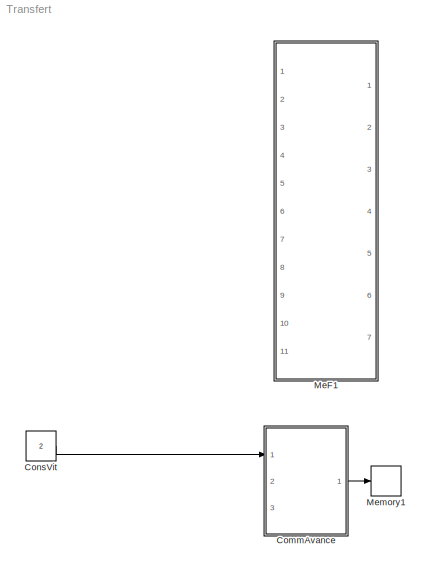
MODEL Transfert
KIND model
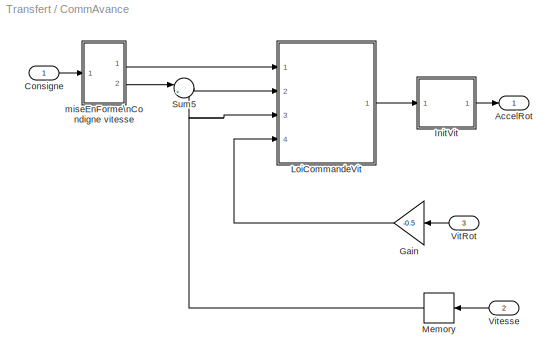
BLOCK [SubSystem] CommAvance
  Ports = [3, 1]
  RequestExecContextInheritance = off
  SID = 1
  Variant = off
BLOCK [Outport] CommAvance/AccelRot
  IconDisplay = Port number
  SID = 42
BLOCK [Inport] CommAvance/Consigne
  IconDisplay = Port number
  SID = 2
BLOCK [Gain] CommAvance/Gain
  Gain = -0.5
  SID = 5
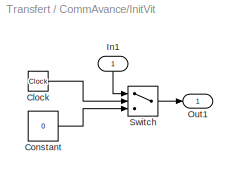
BLOCK [SubSystem] CommAvance/InitVit
  Ports = [1, 1]
  RequestExecContextInheritance = off
  SID = 6
  Variant = off
BLOCK [Clock] CommAvance/InitVit/Clock
  SID = 8
BLOCK [Constant] CommAvance/InitVit/Constant
  SID = 9
  Value = 0
BLOCK [Inport] CommAvance/InitVit/In1
  IconDisplay = Port number
  SID = 7
BLOCK [Outport] CommAvance/InitVit/Out1
  IconDisplay = Port number
  SID = 11
BLOCK [Switch] CommAvance/InitVit/Switch
  InputSameDT = off
  SID = 10
  Threshold = 1
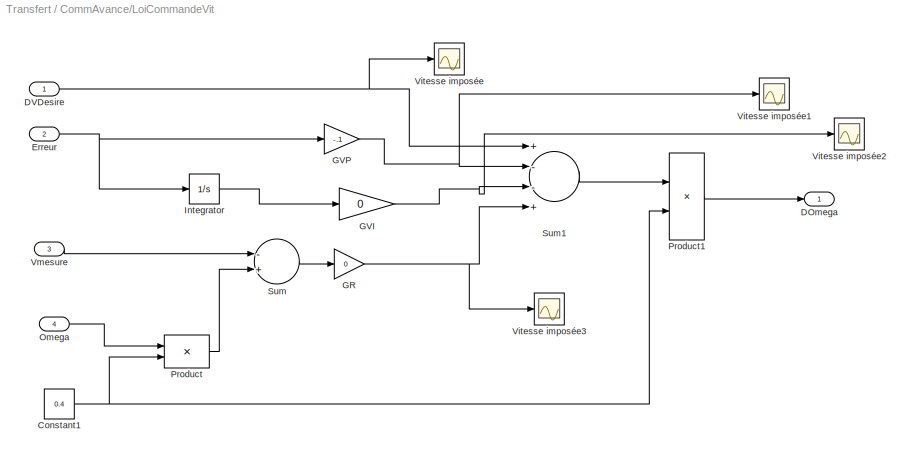
BLOCK [SubSystem] CommAvance/LoiCommandeVit
  Ports = [4, 1]
  RequestExecContextInheritance = off
  SID = 12
  Variant = off
BLOCK [Constant] CommAvance/LoiCommandeVit/Constant1
  SID = 17
  Value = 0.4
BLOCK [Outport] CommAvance/LoiCommandeVit/DOmega
  IconDisplay = Port number
  SID = 30
BLOCK [Inport] CommAvance/LoiCommandeVit/DVDesire
  IconDisplay = Port number
  SID = 13
BLOCK [Inport] CommAvance/LoiCommandeVit/Erreur
  IconDisplay = Port number
  Port = 2
  SID = 14
BLOCK [Gain] CommAvance/LoiCommandeVit/GR
  Gain = 0
  SID = 18
BLOCK [Gain] CommAvance/LoiCommandeVit/GVI
  Gain = 0
  SID = 19
BLOCK [Gain] CommAvance/LoiCommandeVit/GVP
  Gain = -.1
  SID = 20
BLOCK [Integrator] CommAvance/LoiCommandeVit/Integrator
  Ports = [1, 1]
  SID = 21
BLOCK [Inport] CommAvance/LoiCommandeVit/Omega
  IconDisplay = Port number
  Port = 4
  SID = 16
BLOCK [Product] CommAvance/LoiCommandeVit/Product
  InputSameDT = off
  Ports = [2, 1]
  RndMeth = Floor
  SID = 22
BLOCK [Product] CommAvance/LoiCommandeVit/Product1
  InputSameDT = off
  Inputs = */
  Ports = [2, 1]
  RndMeth = Floor
  SID = 23
BLOCK [Sum] CommAvance/LoiCommandeVit/Sum
  InputSameDT = off
  Inputs = -+
  OutDataTypeStr = Inherit: Inherit via internal rule
  Ports = [2, 1]
  SID = 24
BLOCK [Sum] CommAvance/LoiCommandeVit/Sum1
  InputSameDT = off
  Inputs = +--+
  OutDataTypeStr = Inherit: Inherit via internal rule
  Ports = [4, 1]
  SID = 25
BLOCK [Scope] CommAvance/LoiCommandeVit/Vitesse imposée
  NumInputPorts = 1
  Ports = [1]
  SID = 26
  ScopeSpecificationString = C++SS(StrPVP('Location','[597, 321, 921, 560]'),StrPVP('Open','off'),MxPVP('AxesTitles',24,'struct(''axes1'',''%<SignalLabel>'')'),StrPVP('TimeRange','12'),StrPVP('YMin','0'),StrPVP('YMax','2'),StrPVP('SaveToWorkspace','on'),StrPVP('SaveName','derivevite'),StrPVP('DataFormat','StructureWithTime'),StrPVP('LimitDataPoints','off'),StrPVP('BlockParamSampleTime','0'),StrPVP('Decimation','1'),StrPVP('Bl...<+28ch>
BLOCK [Scope] CommAvance/LoiCommandeVit/Vitesse imposée1
  NumInputPorts = 1
  Ports = [1]
  SID = 27
  ScopeSpecificationString = C++SS(StrPVP('Location','[6, 62, 1286, 775]'),StrPVP('Open','off'),MxPVP('AxesTitles',24,'struct(''axes1'',''%<SignalLabel>'')'),StrPVP('TimeRange','12              '),StrPVP('YMin','0.0002'),StrPVP('YMax','0.000725'),StrPVP('SaveName','ScopeData15'),StrPVP('DataFormat','StructureWithTime'),StrPVP('BlockParamSampleTime','0'),StrPVP('LimitDataPoints','on'),StrPVP('Decimation','1'),StrPVP('BlockPara...<+21ch>
BLOCK [Scope] CommAvance/LoiCommandeVit/Vitesse imposée2
  NumInputPorts = 1
  Ports = [1]
  SID = 28
  ScopeSpecificationString = C++SS(StrPVP('Location','[6, 62, 1286, 775]'),StrPVP('Open','off'),MxPVP('AxesTitles',24,'struct(''axes1'',''%<SignalLabel>'')'),StrPVP('TimeRange','12              '),StrPVP('YMin','-1'),StrPVP('YMax','1'),StrPVP('SaveName','ScopeData16'),StrPVP('DataFormat','StructureWithTime'),StrPVP('BlockParamSampleTime','0'),StrPVP('LimitDataPoints','on'),StrPVP('Decimation','1'),StrPVP('BlockParamSampleInpu...<+10ch>
BLOCK [Scope] CommAvance/LoiCommandeVit/Vitesse imposée3
  NumInputPorts = 1
  Ports = [1]
  SID = 29
  ScopeSpecificationString = C++SS(StrPVP('Location','[522, 378, 846, 617]'),StrPVP('Open','off'),MxPVP('AxesTitles',24,'struct(''axes1'',''%<SignalLabel>'')'),StrPVP('TimeRange','12              '),StrPVP('YMin','0.0425'),StrPVP('YMax','0.0625'),StrPVP('SaveName','ScopeData17'),StrPVP('DataFormat','StructureWithTime'),StrPVP('BlockParamSampleTime','0'),StrPVP('LimitDataPoints','on'),StrPVP('Decimation','1'),StrPVP('BlockPara...<+21ch>
BLOCK [Inport] CommAvance/LoiCommandeVit/Vmesure
  IconDisplay = Port number
  Port = 3
  SID = 15
BLOCK [Memory] CommAvance/Memory
  InheritSampleTime = on
  SID = 31
BLOCK [Sum] CommAvance/Sum5
  IconShape = round
  InputSameDT = off
  Inputs = |+-
  OutDataTypeStr = Inherit: Inherit via internal rule
  Ports = [2, 1]
  SID = 32
BLOCK [Inport] CommAvance/VitRot
  IconDisplay = Port number
  Port = 3
  SID = 4
BLOCK [Inport] CommAvance/Vitesse
  IconDisplay = Port number
  Port = 2
  SID = 3
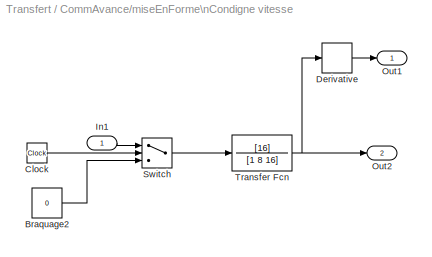
BLOCK [SubSystem] CommAvance/miseEnForme\nCondigne vitesse
  Ports = [1, 2]
  RequestExecContextInheritance = off
  SID = 33
  Variant = off
BLOCK [Constant] CommAvance/miseEnForme\nCondigne vitesse/Braquage2
  SID = 35
  Value = 0
BLOCK [Clock] CommAvance/miseEnForme\nCondigne vitesse/Clock
  SID = 36
BLOCK [Derivative] CommAvance/miseEnForme\nCondigne vitesse/Derivative
  SID = 37
BLOCK [Inport] CommAvance/miseEnForme\nCondigne vitesse/In1
  IconDisplay = Port number
  SID = 34
BLOCK [Outport] CommAvance/miseEnForme\nCondigne vitesse/Out1
  IconDisplay = Port number
  SID = 40
BLOCK [Outport] CommAvance/miseEnForme\nCondigne vitesse/Out2
  IconDisplay = Port number
  Port = 2
  SID = 41
BLOCK [Switch] CommAvance/miseEnForme\nCondigne vitesse/Switch
  InputSameDT = off
  SID = 38
  SaturateOnIntegerOverflow = off
  Threshold = 1.5
BLOCK [TransferFcn] CommAvance/miseEnForme\nCondigne vitesse/Transfer Fcn
  Denominator = [1 8 16]
  Numerator = [16]
  SID = 39
BLOCK [Constant] ConsVit
  SID = 43
  Value = 2
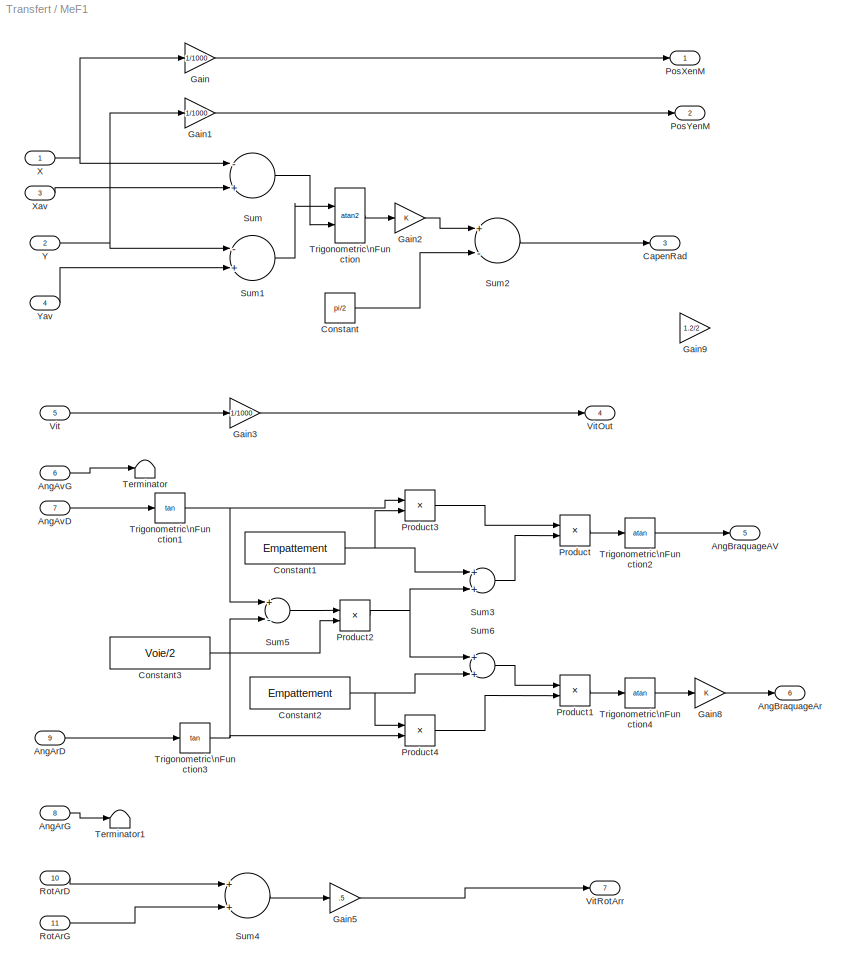
BLOCK [SubSystem] MeF1
  Ports = [11, 7]
  RequestExecContextInheritance = off
  SID = 44
  Variant = off
BLOCK [Inport] MeF1/AngArD
  IconDisplay = Port number
  Port = 9
  SID = 53
BLOCK [Inport] MeF1/AngArG
  IconDisplay = Port number
  Port = 8
  SID = 52
BLOCK [Inport] MeF1/AngAvD
  IconDisplay = Port number
  Port = 7
  SID = 51
BLOCK [Inport] MeF1/AngAvG
  IconDisplay = Port number
  Port = 6
  SID = 50
BLOCK [Outport] MeF1/AngBraquageAV
  IconDisplay = Port number
  Port = 5
  SID = 90
BLOCK [Outport] MeF1/AngBraquageAr
  IconDisplay = Port number
  Port = 6
  SID = 91
BLOCK [Outport] MeF1/CapenRad
  IconDisplay = Port number
  Port = 3
  SID = 88
BLOCK [Constant] MeF1/Constant
  SID = 56
  Value = pi/2
BLOCK [Constant] MeF1/Constant1
  SID = 57
  Value = Empattement
BLOCK [Constant] MeF1/Constant2
  SID = 58
  Value = Empattement
BLOCK [Constant] MeF1/Constant3
  SID = 59
  Value = Voie/2
BLOCK [Gain] MeF1/Gain
  Gain = 1/1000
  OutDataTypeStr = Inherit: Inherit via internal rule
  ParamDataTypeStr = Inherit: Inherit via internal rule
  SID = 60
  SaturateOnIntegerOverflow = off
BLOCK [Gain] MeF1/Gain1
  Gain = 1/1000
  OutDataTypeStr = Inherit: Inherit via internal rule
  ParamDataTypeStr = Inherit: Inherit via internal rule
  SID = 61
  SaturateOnIntegerOverflow = off
BLOCK [Gain] MeF1/Gain2
  OutDataTypeStr = Inherit: Inherit via internal rule
  ParamDataTypeStr = Inherit: Inherit via internal rule
  SID = 62
  SaturateOnIntegerOverflow = off
BLOCK [Gain] MeF1/Gain3
  Gain = 1/1000
  OutDataTypeStr = Inherit: Inherit via internal rule
  ParamDataTypeStr = Inherit: Inherit via internal rule
  SID = 63
  SaturateOnIntegerOverflow = off
BLOCK [Gain] MeF1/Gain5
  Gain = .5
  OutDataTypeStr = Inherit: Inherit via internal rule
  ParamDataTypeStr = Inherit: Inherit via internal rule
  SID = 64
  SaturateOnIntegerOverflow = off
BLOCK [Gain] MeF1/Gain8
  OutDataTypeStr = Inherit: Inherit via internal rule
  ParamDataTypeStr = Inherit: Inherit via internal rule
  SID = 65
  SaturateOnIntegerOverflow = off
BLOCK [Gain] MeF1/Gain9
  Gain = 1.2/2
  OutDataTypeStr = Inherit: Inherit via internal rule
  ParamDataTypeStr = Inherit: Inherit via internal rule
  SID = 66
  SaturateOnIntegerOverflow = off
BLOCK [Outport] MeF1/PosXenM
  IconDisplay = Port number
  SID = 86
BLOCK [Outport] MeF1/PosYenM
  IconDisplay = Port number
  Port = 2
  SID = 87
BLOCK [Product] MeF1/Product
  InputSameDT = off
  Inputs = */
  OutDataTypeStr = Inherit: Inherit via internal rule
  Ports = [2, 1]
  SID = 67
  SaturateOnIntegerOverflow = off
BLOCK [Product] MeF1/Product1
  InputSameDT = off
  Inputs = /*
  OutDataTypeStr = Inherit: Inherit via internal rule
  Ports = [2, 1]
  SID = 68
  SaturateOnIntegerOverflow = off
BLOCK [Product] MeF1/Product2
  InputSameDT = off
  Inputs = **
  OutDataTypeStr = Inherit: Inherit via internal rule
  Ports = [2, 1]
  SID = 69
  SaturateOnIntegerOverflow = off
BLOCK [Product] MeF1/Product3
  InputSameDT = off
  Inputs = **
  OutDataTypeStr = Inherit: Inherit via internal rule
  Ports = [2, 1]
  SID = 70
  SaturateOnIntegerOverflow = off
BLOCK [Product] MeF1/Product4
  InputSameDT = off
  Inputs = **
  OutDataTypeStr = Inherit: Inherit via internal rule
  Ports = [2, 1]
  SID = 71
  SaturateOnIntegerOverflow = off
BLOCK [Inport] MeF1/RotArD
  IconDisplay = Port number
  Port = 10
  SID = 54
BLOCK [Inport] MeF1/RotArG
  IconDisplay = Port number
  Port = 11
  SID = 55
BLOCK [Sum] MeF1/Sum
  InputSameDT = off
  Inputs = -+
  OutDataTypeStr = Inherit: Inherit via internal rule
  Ports = [2, 1]
  SID = 72
  SaturateOnIntegerOverflow = off
BLOCK [Sum] MeF1/Sum1
  InputSameDT = off
  Inputs = -+
  OutDataTypeStr = Inherit: Inherit via internal rule
  Ports = [2, 1]
  SID = 73
  SaturateOnIntegerOverflow = off
BLOCK [Sum] MeF1/Sum2
  InputSameDT = off
  Inputs = +-
  OutDataTypeStr = Inherit: Inherit via internal rule
  Ports = [2, 1]
  SID = 74
  SaturateOnIntegerOverflow = off
BLOCK [Sum] MeF1/Sum3
  InputSameDT = off
  OutDataTypeStr = Inherit: Inherit via internal rule
  Ports = [2, 1]
  SID = 75
  SaturateOnIntegerOverflow = off
BLOCK [Sum] MeF1/Sum4
  InputSameDT = off
  OutDataTypeStr = Inherit: Inherit via internal rule
  Ports = [2, 1]
  SID = 76
  SaturateOnIntegerOverflow = off
BLOCK [Sum] MeF1/Sum5
  InputSameDT = off
  Inputs = +-
  OutDataTypeStr = Inherit: Inherit via internal rule
  Ports = [2, 1]
  SID = 77
  SaturateOnIntegerOverflow = off
BLOCK [Sum] MeF1/Sum6
  InputSameDT = off
  OutDataTypeStr = Inherit: Inherit via internal rule
  Ports = [2, 1]
  SID = 78
  SaturateOnIntegerOverflow = off
BLOCK [Terminator] MeF1/Terminator
  SID = 79
BLOCK [Terminator] MeF1/Terminator1
  SID = 80
BLOCK [Trigonometry] MeF1/Trigonometric\nFunction
  Operator = atan2
  Ports = [2, 1]
  SID = 81
BLOCK [Trigonometry] MeF1/Trigonometric\nFunction1
  Operator = tan
  Ports = [1, 1]
  SID = 82
BLOCK [Trigonometry] MeF1/Trigonometric\nFunction2
  Operator = atan
  Ports = [1, 1]
  SID = 83
BLOCK [Trigonometry] MeF1/Trigonometric\nFunction3
  Operator = tan
  Ports = [1, 1]
  SID = 84
BLOCK [Trigonometry] MeF1/Trigonometric\nFunction4
  Operator = atan
  Ports = [1, 1]
  SID = 85
BLOCK [Inport] MeF1/Vit
  IconDisplay = Port number
  Port = 5
  SID = 49
BLOCK [Outport] MeF1/VitOut
  IconDisplay = Port number
  Port = 4
  SID = 89
BLOCK [Outport] MeF1/VitRotArr
  IconDisplay = Port number
  Port = 7
  SID = 92
BLOCK [Inport] MeF1/X
  IconDisplay = Port number
  SID = 45
BLOCK [Inport] MeF1/Xav
  IconDisplay = Port number
  Port = 3
  SID = 47
BLOCK [Inport] MeF1/Y
  IconDisplay = Port number
  Port = 2
  SID = 46
BLOCK [Inport] MeF1/Yav
  IconDisplay = Port number
  Port = 4
  SID = 48
BLOCK [Memory] Memory1
  InheritSampleTime = on
  SID = 93
LINE CommAvance/Consigne:1 -> CommAvance/miseEnForme\nCondigne vitesse:1
LINE CommAvance/Gain:1 -> CommAvance/LoiCommandeVit:4
LINE CommAvance/InitVit/Clock:1 -> CommAvance/InitVit/Switch:2
LINE CommAvance/InitVit/Constant:1 -> CommAvance/InitVit/Switch:3
LINE CommAvance/InitVit/In1:1 -> CommAvance/InitVit/Switch:1
LINE CommAvance/InitVit/Switch:1 -> CommAvance/InitVit/Out1:1
LINE CommAvance/InitVit:1 -> CommAvance/AccelRot:1
NET CommAvance/LoiCommandeVit/Constant1:1 -> CommAvance/LoiCommandeVit/Product1:2, CommAvance/LoiCommandeVit/Product:2
NET CommAvance/LoiCommandeVit/DVDesire:1 -> CommAvance/LoiCommandeVit/Sum1:1, CommAvance/LoiCommandeVit/Vitesse imposée:1
NET CommAvance/LoiCommandeVit/Erreur:1 -> CommAvance/LoiCommandeVit/GVP:1, CommAvance/LoiCommandeVit/Integrator:1
NET CommAvance/LoiCommandeVit/GR:1 -> CommAvance/LoiCommandeVit/Sum1:4, CommAvance/LoiCommandeVit/Vitesse imposée3:1
NET CommAvance/LoiCommandeVit/GVI:1 -> CommAvance/LoiCommandeVit/Sum1:3, CommAvance/LoiCommandeVit/Vitesse imposée2:1
NET CommAvance/LoiCommandeVit/GVP:1 -> CommAvance/LoiCommandeVit/Sum1:2, CommAvance/LoiCommandeVit/Vitesse imposée1:1
LINE CommAvance/LoiCommandeVit/Integrator:1 -> CommAvance/LoiCommandeVit/GVI:1
LINE CommAvance/LoiCommandeVit/Omega:1 -> CommAvance/LoiCommandeVit/Product:1
LINE CommAvance/LoiCommandeVit/Product1:1 -> CommAvance/LoiCommandeVit/DOmega:1
LINE CommAvance/LoiCommandeVit/Product:1 -> CommAvance/LoiCommandeVit/Sum:2
LINE CommAvance/LoiCommandeVit/Sum1:1 -> CommAvance/LoiCommandeVit/Product1:1
LINE CommAvance/LoiCommandeVit/Sum:1 -> CommAvance/LoiCommandeVit/GR:1
LINE CommAvance/LoiCommandeVit/Vmesure:1 -> CommAvance/LoiCommandeVit/Sum:1
LINE CommAvance/LoiCommandeVit:1 -> CommAvance/InitVit:1
NET CommAvance/Memory:1 -> CommAvance/LoiCommandeVit:3, CommAvance/Sum5:2
LINE CommAvance/Sum5:1 -> CommAvance/LoiCommandeVit:2
LINE CommAvance/VitRot:1 -> CommAvance/Gain:1
LINE CommAvance/Vitesse:1 -> CommAvance/Memory:1
LINE CommAvance/miseEnForme\nCondigne vitesse/Braquage2:1 -> CommAvance/miseEnForme\nCondigne vitesse/Switch:3
LINE CommAvance/miseEnForme\nCondigne vitesse/Clock:1 -> CommAvance/miseEnForme\nCondigne vitesse/Switch:2
LINE CommAvance/miseEnForme\nCondigne vitesse/Derivative:1 -> CommAvance/miseEnForme\nCondigne vitesse/Out1:1
LINE CommAvance/miseEnForme\nCondigne vitesse/In1:1 -> CommAvance/miseEnForme\nCondigne vitesse/Switch:1
LINE CommAvance/miseEnForme\nCondigne vitesse/Switch:1 -> CommAvance/miseEnForme\nCondigne vitesse/Transfer Fcn:1
NET CommAvance/miseEnForme\nCondigne vitesse/Transfer Fcn:1 -> CommAvance/miseEnForme\nCondigne vitesse/Derivative:1, CommAvance/miseEnForme\nCondigne vitesse/Out2:1
LINE CommAvance/miseEnForme\nCondigne vitesse:1 -> CommAvance/LoiCommandeVit:1
LINE CommAvance/miseEnForme\nCondigne vitesse:2 -> CommAvance/Sum5:1
LINE CommAvance:1 -> Memory1:1
LINE ConsVit:1 -> CommAvance:1
LINE MeF1/AngArD:1 -> MeF1/Trigonometric\nFunction3:1
LINE MeF1/AngArG:1 -> MeF1/Terminator1:1
LINE MeF1/AngAvD:1 -> MeF1/Trigonometric\nFunction1:1
LINE MeF1/AngAvG:1 -> MeF1/Terminator:1
NET MeF1/Constant1:1 -> MeF1/Product3:2, MeF1/Sum3:1
NET MeF1/Constant2:1 -> MeF1/Product4:1, MeF1/Sum6:2
LINE MeF1/Constant3:1 -> MeF1/Product2:2
LINE MeF1/Constant:1 -> MeF1/Sum2:2
LINE MeF1/Gain1:1 -> MeF1/PosYenM:1
LINE MeF1/Gain2:1 -> MeF1/Sum2:1
LINE MeF1/Gain3:1 -> MeF1/VitOut:1
LINE MeF1/Gain5:1 -> MeF1/VitRotArr:1
LINE MeF1/Gain8:1 -> MeF1/AngBraquageAr:1
LINE MeF1/Gain:1 -> MeF1/PosXenM:1
LINE MeF1/Product1:1 -> MeF1/Trigonometric\nFunction4:1
NET MeF1/Product2:1 -> MeF1/Sum3:2, MeF1/Sum6:1
LINE MeF1/Product3:1 -> MeF1/Product:1
LINE MeF1/Product4:1 -> MeF1/Product1:2
LINE MeF1/Product:1 -> MeF1/Trigonometric\nFunction2:1
LINE MeF1/RotArD:1 -> MeF1/Sum4:1
LINE MeF1/RotArG:1 -> MeF1/Sum4:2
LINE MeF1/Sum1:1 -> MeF1/Trigonometric\nFunction:1
LINE MeF1/Sum2:1 -> MeF1/CapenRad:1
LINE MeF1/Sum3:1 -> MeF1/Product:2
LINE MeF1/Sum4:1 -> MeF1/Gain5:1
LINE MeF1/Sum5:1 -> MeF1/Product2:1
LINE MeF1/Sum6:1 -> MeF1/Product1:1
LINE MeF1/Sum:1 -> MeF1/Trigonometric\nFunction:2
NET MeF1/Trigonometric\nFunction1:1 -> MeF1/Product3:1, MeF1/Sum5:1
LINE MeF1/Trigonometric\nFunction2:1 -> MeF1/AngBraquageAV:1
NET MeF1/Trigonometric\nFunction3:1 -> MeF1/Product4:2, MeF1/Sum5:2
LINE MeF1/Trigonometric\nFunction4:1 -> MeF1/Gain8:1
LINE MeF1/Trigonometric\nFunction:1 -> MeF1/Gain2:1
LINE MeF1/Vit:1 -> MeF1/Gain3:1
NET MeF1/X:1 -> MeF1/Gain:1, MeF1/Sum:1
LINE MeF1/Xav:1 -> MeF1/Sum:2
NET MeF1/Y:1 -> MeF1/Gain1:1, MeF1/Sum1:1
LINE MeF1/Yav:1 -> MeF1/Sum1:2
note: NET lines group one-source signal fan-out (src -> all destinations, sorted); 1:1 wires keep LINE
